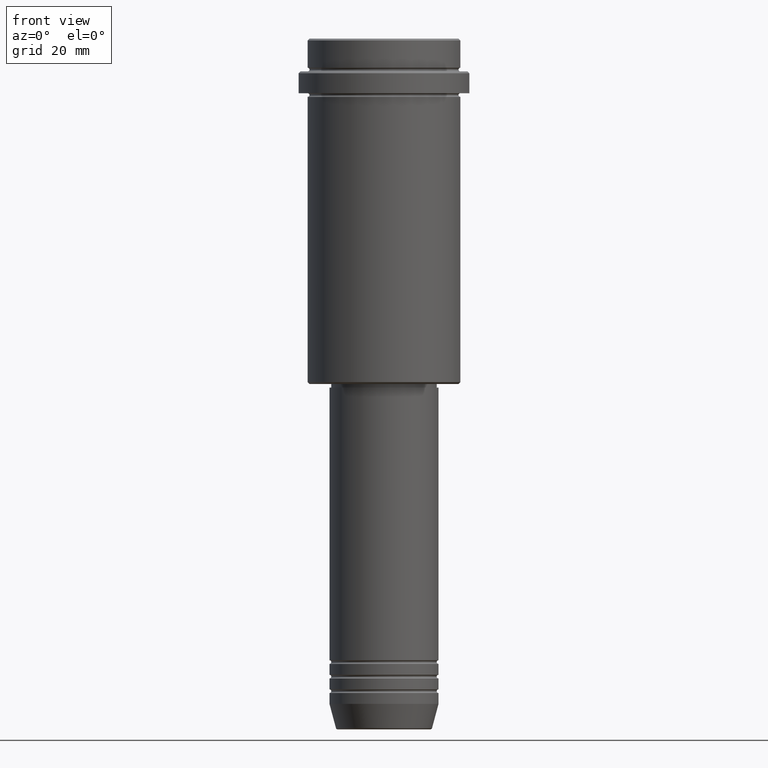
[diagram: clean part render]
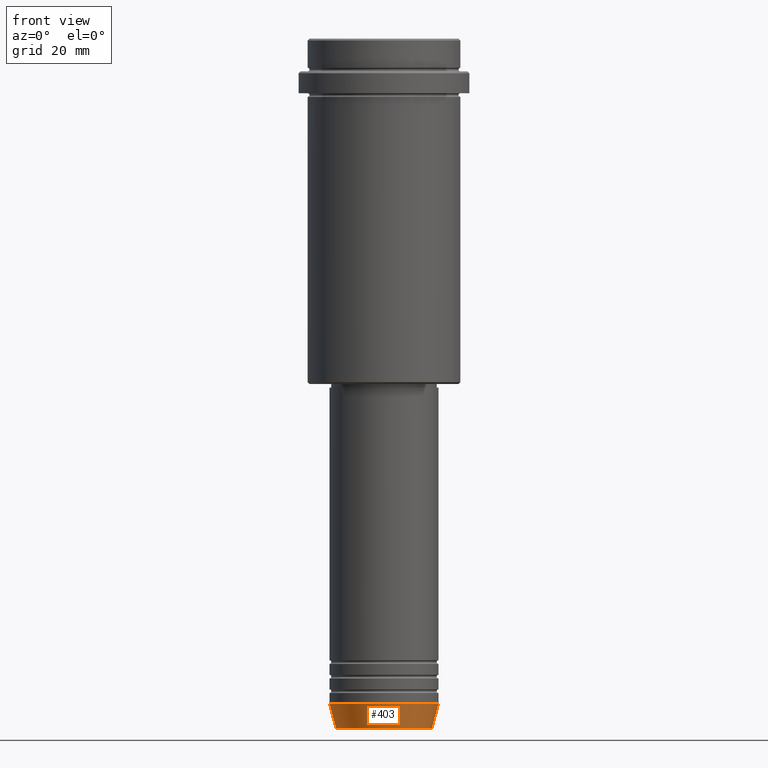
[diagram: same view with one face highlighted and labeled with its STEP entity id]
A machine part, front view. The second image highlights one B-rep face of the part: STEP entity #403.
In plain terms, the highlighted conical surface has half-angle 15 deg.
Its self-contained STEP definition (entity closure, byte-faithful):
#23 = EDGE_CURVE ( 'NONE', #1393, #132, #743, .T. ) ;
#103 = DIRECTION ( 'NONE',  ( -0.000000000000000000, -0.000000000000000000, 1.000000000000000000 ) ) ;
#119 = EDGE_LOOP ( 'NONE', ( #1078, #156, #167, #1397 ) ) ;
#132 = VERTEX_POINT ( 'NONE', #894 ) ;
#135 = CARTESIAN_POINT ( 'NONE',  ( 15.00000000000000000, 0.000000000000000000, -183.0000000000000000 ) ) ;
#156 = ORIENTED_EDGE ( 'NONE', *, *, #346, .T. ) ;
#160 = VERTEX_POINT ( 'NONE', #135 ) ;
#167 = ORIENTED_EDGE ( 'NONE', *, *, #553, .T. ) ;
#259 = DIRECTION ( 'NONE',  ( 0.2588190451025213501, 0.000000000000000000, 0.9659258262890680902 ) ) ;
#346 = EDGE_CURVE ( 'NONE', #1393, #586, #455, .T. ) ;
#357 = AXIS2_PLACEMENT_3D ( 'NONE', #466, #567, #1113 ) ;
#403 = ADVANCED_FACE ( 'NONE', ( #447 ), #588, .T. ) ;
#447 = FACE_OUTER_BOUND ( 'NONE', #119, .T. ) ;
#455 = CIRCLE ( 'NONE', #1105, 13.22365507213719482 ) ;
#466 = CARTESIAN_POINT ( 'NONE',  ( 0.000000000000000000, 0.000000000000000000, -183.0000000000000000 ) ) ;
#542 = VECTOR ( 'NONE', #259, 1000.000000000000000 ) ;
#553 = EDGE_CURVE ( 'NONE', #586, #160, #1027, .T. ) ;
#567 = DIRECTION ( 'NONE',  ( -0.000000000000000000, -0.000000000000000000, 1.000000000000000000 ) ) ;
#586 = VERTEX_POINT ( 'NONE', #1127 ) ;
#588 = CONICAL_SURFACE ( 'NONE', #357, 15.00000000000000000, 0.2617993877991500740 ) ;
#591 = CIRCLE ( 'NONE', #1022, 15.00000000000000000 ) ;
#635 = DIRECTION ( 'NONE',  ( 1.000000000000000000, 0.000000000000000000, 0.000000000000000000 ) ) ;
#702 = VECTOR ( 'NONE', #1158, 1000.000000000000000 ) ;
#743 = LINE ( 'NONE', #1035, #702 ) ;
#761 = CARTESIAN_POINT ( 'NONE',  ( 0.000000000000000000, 0.000000000000000000, -189.6294095225512422 ) ) ;
#812 = CARTESIAN_POINT ( 'NONE',  ( 15.00000000000000000, 0.000000000000000000, -183.0000000000000000 ) ) ;
#822 = CARTESIAN_POINT ( 'NONE',  ( 0.000000000000000000, 0.000000000000000000, -183.0000000000000000 ) ) ;
#894 = CARTESIAN_POINT ( 'NONE',  ( -15.00000000000000000, 1.836970198721029589E-15, -183.0000000000000000 ) ) ;
#920 = DIRECTION ( 'NONE',  ( -0.000000000000000000, -0.000000000000000000, 1.000000000000000000 ) ) ;
#934 = CARTESIAN_POINT ( 'NONE',  ( -13.22365507213719660, 1.728200442216588780E-15, -189.6294095225512422 ) ) ;
#970 = EDGE_CURVE ( 'NONE', #132, #160, #591, .T. ) ;
#1022 = AXIS2_PLACEMENT_3D ( 'NONE', #822, #920, #1048 ) ;
#1027 = LINE ( 'NONE', #812, #542 ) ;
#1035 = CARTESIAN_POINT ( 'NONE',  ( -15.00000000000000000, 1.836970198721029589E-15, -183.0000000000000000 ) ) ;
#1048 = DIRECTION ( 'NONE',  ( 1.000000000000000000, 0.000000000000000000, 0.000000000000000000 ) ) ;
#1078 = ORIENTED_EDGE ( 'NONE', *, *, #23, .F. ) ;
#1105 = AXIS2_PLACEMENT_3D ( 'NONE', #761, #103, #635 ) ;
#1113 = DIRECTION ( 'NONE',  ( 1.000000000000000000, 0.000000000000000000, 0.000000000000000000 ) ) ;
#1127 = CARTESIAN_POINT ( 'NONE',  ( 13.22365507213719482, 0.000000000000000000, -189.6294095225512422 ) ) ;
#1158 = DIRECTION ( 'NONE',  ( -0.2588190451025213501, 3.169619151431772337E-17, 0.9659258262890680902 ) ) ;
#1393 = VERTEX_POINT ( 'NONE', #934 ) ;
#1397 = ORIENTED_EDGE ( 'NONE', *, *, #970, .F. ) ;